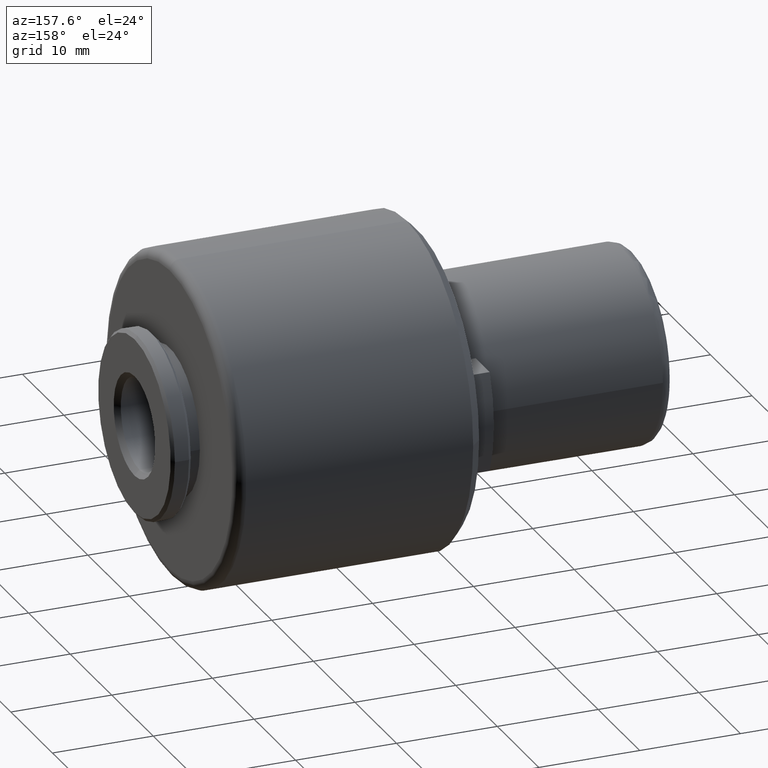
[diagram: clean part render]
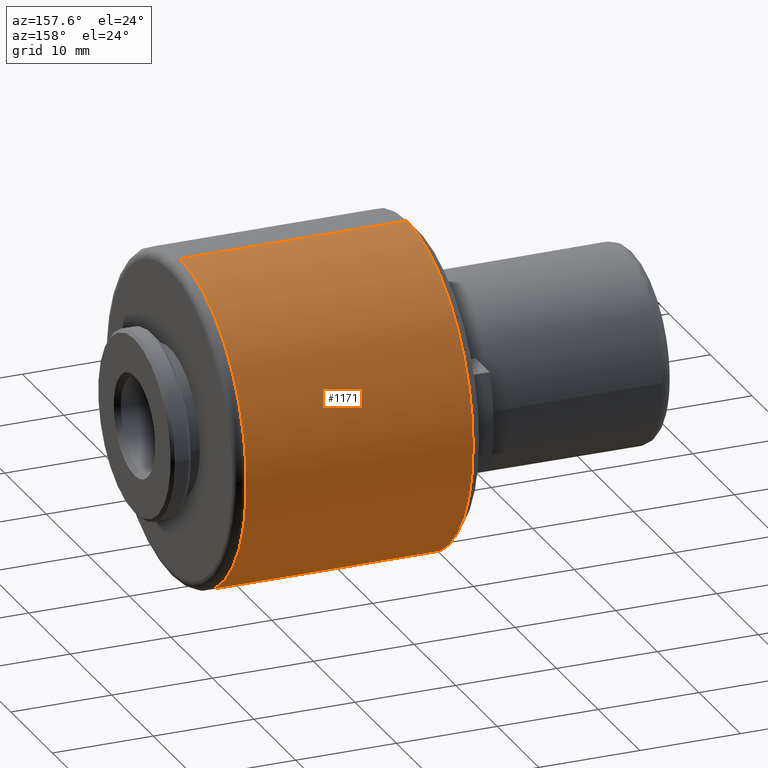
[diagram: same view with one face highlighted and labeled with its STEP entity id]
A machine part, auxiliary view. The second image highlights one B-rep face of the part: STEP entity #1171.
In plain terms, the highlighted cylindrical surface (partial cylindrical patch) has radius 16 mm, axis along (-1, 0, 0).
Its self-contained STEP definition (entity closure, byte-faithful):
#15 = EDGE_CURVE ( 'NONE', #1228, #44, #600, .T. ) ;
#34 = VERTEX_POINT ( 'NONE', #460 ) ;
#44 = VERTEX_POINT ( 'NONE', #792 ) ;
#50 = DIRECTION ( 'NONE',  ( 0.0000000000000000000, 0.0000000000000000000, -1.000000000000000000 ) ) ;
#112 = CARTESIAN_POINT ( 'NONE',  ( 22.49999999999996400, 0.0000000000000000000, 0.0000000000000000000 ) ) ;
#224 = AXIS2_PLACEMENT_3D ( 'NONE', #670, #395, #376 ) ;
#275 = CARTESIAN_POINT ( 'NONE',  ( 45.00000000000000000, 0.0000000000000000000, 16.00000000000000000 ) ) ;
#303 = EDGE_CURVE ( 'NONE', #34, #1228, #978, .T. ) ;
#364 = EDGE_CURVE ( 'NONE', #510, #34, #1142, .T. ) ;
#376 = DIRECTION ( 'NONE',  ( 0.0000000000000000000, 0.0000000000000000000, 1.000000000000000000 ) ) ;
#394 = DIRECTION ( 'NONE',  ( -1.000000000000000000, 0.0000000000000000000, 0.0000000000000000000 ) ) ;
#395 = DIRECTION ( 'NONE',  ( -1.000000000000000000, 0.0000000000000000000, 0.0000000000000000000 ) ) ;
#406 = DIRECTION ( 'NONE',  ( 2.168404344971008900E-015, 0.0000000000000000000, -1.000000000000000000 ) ) ;
#460 = CARTESIAN_POINT ( 'NONE',  ( 45.00000000000000000, 1.959434878635765100E-015, -16.00000000000000000 ) ) ;
#510 = VERTEX_POINT ( 'NONE', #275 ) ;
#514 = EDGE_CURVE ( 'NONE', #510, #793, #623, .T. ) ;
#515 = CARTESIAN_POINT ( 'NONE',  ( 22.49999999999996400, 0.0000000000000000000, 0.0000000000000000000 ) ) ;
#585 = ORIENTED_EDGE ( 'NONE', *, *, #364, .T. ) ;
#600 = CIRCLE ( 'NONE', #985, 16.00000000000000000 ) ;
#611 = ORIENTED_EDGE ( 'NONE', *, *, #746, .T. ) ;
#623 = LINE ( 'NONE', #1042, #679 ) ;
#624 = AXIS2_PLACEMENT_3D ( 'NONE', #515, #1134, #406 ) ;
#629 = ORIENTED_EDGE ( 'NONE', *, *, #514, .F. ) ;
#658 = CARTESIAN_POINT ( 'NONE',  ( 45.00000000000000000, 0.0000000000000000000, 0.0000000000000000000 ) ) ;
#670 = CARTESIAN_POINT ( 'NONE',  ( 33.70455488500000000, 0.0000000000000000000, 0.0000000000000000000 ) ) ;
#679 = VECTOR ( 'NONE', #1086, 1000.000000000000000 ) ;
#735 = CYLINDRICAL_SURFACE ( 'NONE', #224, 16.00000000000000000 ) ;
#746 = EDGE_CURVE ( 'NONE', #44, #793, #1238, .T. ) ;
#792 = CARTESIAN_POINT ( 'NONE',  ( 22.49999999999996400, 15.99999999999997000, 0.0000000000000000000 ) ) ;
#793 = VERTEX_POINT ( 'NONE', #1019 ) ;
#847 = DIRECTION ( 'NONE',  ( -1.000000000000000000, 0.0000000000000000000, -0.0000000000000000000 ) ) ;
#854 = ORIENTED_EDGE ( 'NONE', *, *, #303, .T. ) ;
#858 = DIRECTION ( 'NONE',  ( 2.168404344971008900E-015, 0.0000000000000000000, -1.000000000000000000 ) ) ;
#861 = AXIS2_PLACEMENT_3D ( 'NONE', #658, #847, #50 ) ;
#963 = DIRECTION ( 'NONE',  ( 1.000000000000000000, 0.0000000000000000000, 0.0000000000000000000 ) ) ;
#978 = LINE ( 'NONE', #1145, #1140 ) ;
#985 = AXIS2_PLACEMENT_3D ( 'NONE', #112, #963, #858 ) ;
#991 = FACE_OUTER_BOUND ( 'NONE', #1045, .T. ) ;
#1019 = CARTESIAN_POINT ( 'NONE',  ( 22.49999999999996400, 0.0000000000000000000, 16.00000000000000000 ) ) ;
#1042 = CARTESIAN_POINT ( 'NONE',  ( 33.70455488500000000, 0.0000000000000000000, 16.00000000000000000 ) ) ;
#1045 = EDGE_LOOP ( 'NONE', ( #585, #854, #1099, #611, #629 ) ) ;
#1086 = DIRECTION ( 'NONE',  ( -1.000000000000000000, 0.0000000000000000000, 0.0000000000000000000 ) ) ;
#1099 = ORIENTED_EDGE ( 'NONE', *, *, #15, .T. ) ;
#1130 = CARTESIAN_POINT ( 'NONE',  ( 22.49999999999996400, 1.959434878635765100E-015, -16.00000000000000000 ) ) ;
#1134 = DIRECTION ( 'NONE',  ( 1.000000000000000000, 0.0000000000000000000, 0.0000000000000000000 ) ) ;
#1140 = VECTOR ( 'NONE', #394, 1000.000000000000000 ) ;
#1142 = CIRCLE ( 'NONE', #861, 16.00000000000000000 ) ;
#1145 = CARTESIAN_POINT ( 'NONE',  ( 33.70455488500000000, 1.959434878635765100E-015, -16.00000000000000000 ) ) ;
#1171 = ADVANCED_FACE ( 'NONE', ( #991 ), #735, .T. ) ;
#1228 = VERTEX_POINT ( 'NONE', #1130 ) ;
#1238 = CIRCLE ( 'NONE', #624, 16.00000000000000000 ) ;